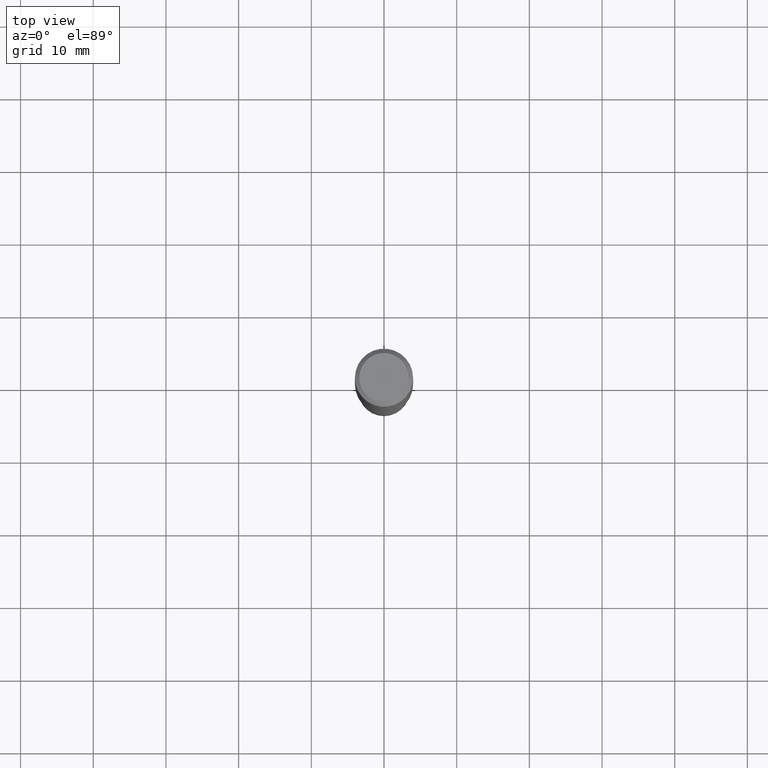
[diagram: clean part render]
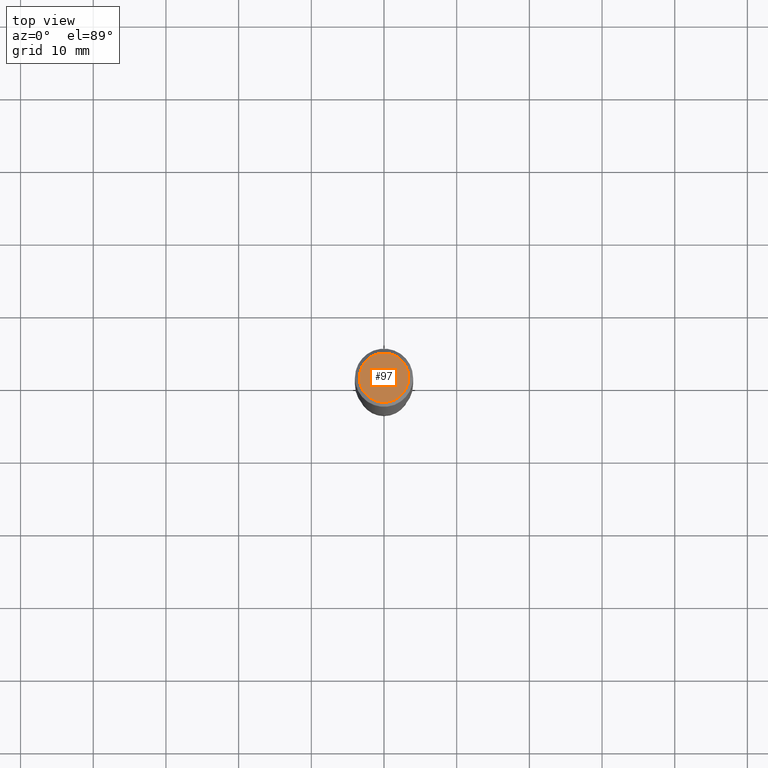
[diagram: same view with one face highlighted and labeled with its STEP entity id]
A machine part, top view. The second image highlights one B-rep face of the part: STEP entity #97.
In plain terms, the highlighted planar face has unit normal (0, -0, -1).
Its self-contained STEP definition (entity closure, byte-faithful):
#24 = AXIS2_PLACEMENT_3D ( 'NONE', #380, #166, #388 ) ;
#55 = DIRECTION ( 'NONE',  ( 1.000000000000000000, -6.982962677686266711E-15, 4.876170806578254279E-29 ) ) ;
#70 = VERTEX_POINT ( 'NONE', #375 ) ;
#79 = VERTEX_POINT ( 'NONE', #158 ) ;
#97 = ADVANCED_FACE ( 'NONE', ( #170 ), #247, .F. ) ;
#134 = DIRECTION ( 'NONE',  ( -2.445468806185136597E-29, 3.491481338843145583E-15, 1.000000000000000000 ) ) ;
#158 = CARTESIAN_POINT ( 'NONE',  ( 0.1338749999999999940, -1.040731925365424925E-15, 4.101342130351390035E-18 ) ) ;
#165 = DIRECTION ( 'NONE',  ( 1.000000000000000000, -6.982962677686266711E-15, 4.876170806578254279E-29 ) ) ;
#166 = DIRECTION ( 'NONE',  ( 2.438088387897960049E-29, -3.491481338843145188E-15, -1.000000000000000000 ) ) ;
#170 = FACE_OUTER_BOUND ( 'NONE', #228, .T. ) ;
#172 = AXIS2_PLACEMENT_3D ( 'NONE', #240, #134, #55 ) ;
#207 = DIRECTION ( 'NONE',  ( -2.445468806185136597E-29, 3.491481338843145583E-15, 1.000000000000000000 ) ) ;
#228 = EDGE_LOOP ( 'NONE', ( #337, #295 ) ) ;
#236 = EDGE_CURVE ( 'NONE', #70, #79, #412, .T. ) ;
#240 = CARTESIAN_POINT ( 'NONE',  ( -1.002970424325032604E-46, 1.431975951230895391E-32, 4.101342130344482109E-18 ) ) ;
#247 = PLANE ( 'NONE',  #24 ) ;
#295 = ORIENTED_EDGE ( 'NONE', *, *, #368, .T. ) ;
#302 = AXIS2_PLACEMENT_3D ( 'NONE', #379, #207, #165 ) ;
#326 = CIRCLE ( 'NONE', #172, 0.1338749999999999940 ) ;
#337 = ORIENTED_EDGE ( 'NONE', *, *, #236, .T. ) ;
#368 = EDGE_CURVE ( 'NONE', #79, #70, #326, .T. ) ;
#375 = CARTESIAN_POINT ( 'NONE',  ( -0.1338749999999999940, 9.760872517903331886E-16, 4.101342130337800673E-18 ) ) ;
#379 = CARTESIAN_POINT ( 'NONE',  ( -1.002970424325032604E-46, 1.431975951230895391E-32, 4.101342130344482109E-18 ) ) ;
#380 = CARTESIAN_POINT ( 'NONE',  ( -5.014852121625163022E-47, 7.159879756154476955E-33, 2.050671065172241055E-18 ) ) ;
#388 = DIRECTION ( 'NONE',  ( -1.000000000000000000, 6.982962677686265922E-15, -4.876176775795935793E-29 ) ) ;
#412 = CIRCLE ( 'NONE', #302, 0.1338749999999999940 ) ;